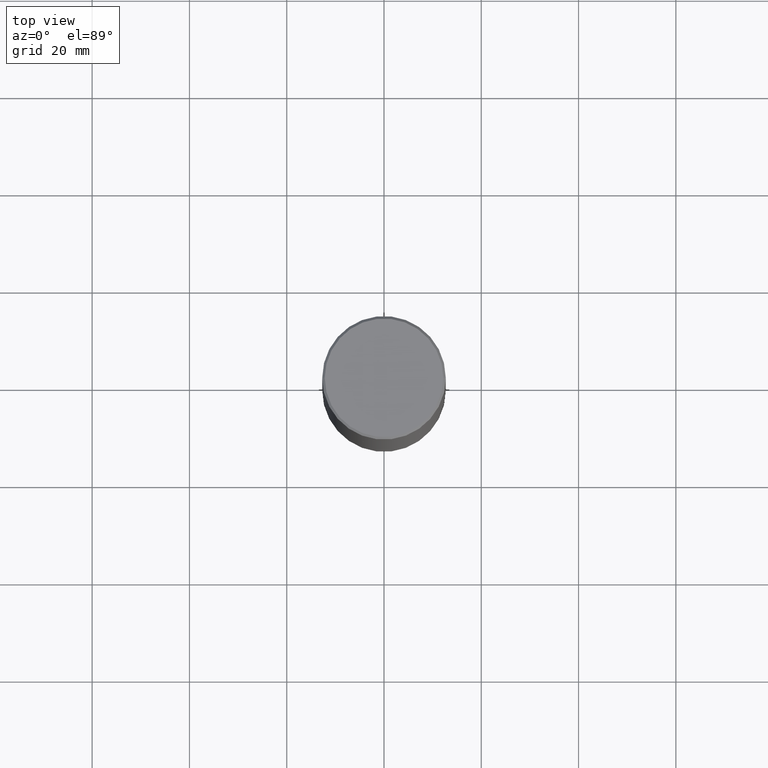
[diagram: clean part render]
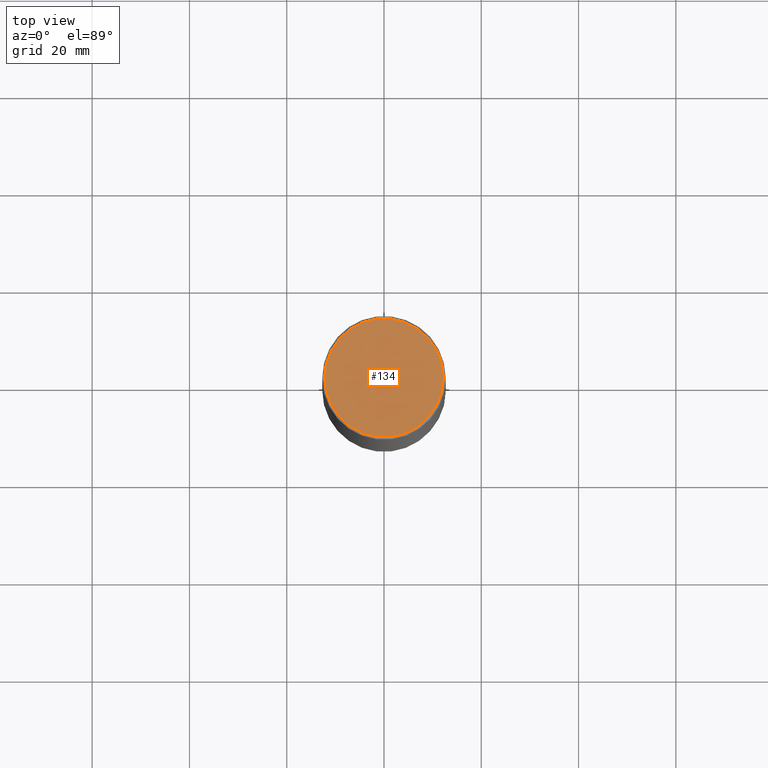
[diagram: same view with one face highlighted and labeled with its STEP entity id]
A machine part, top view. The second image highlights one B-rep face of the part: STEP entity #134.
In plain terms, the highlighted planar face has unit normal (0, -0, -1).
Its self-contained STEP definition (entity closure, byte-faithful):
#4 = CIRCLE ( 'NONE', #146, 0.4800000000000000933 ) ;
#20 = FACE_OUTER_BOUND ( 'NONE', #254, .T. ) ;
#27 = DIRECTION ( 'NONE',  ( 1.000000000000000000, -6.982962677686266711E-15, 4.874852205035275907E-29 ) ) ;
#34 = DIRECTION ( 'NONE',  ( -2.445468806185136597E-29, 3.491481338843145583E-15, 1.000000000000000000 ) ) ;
#93 = CARTESIAN_POINT ( 'NONE',  ( 2.609628535838049452E-45, -3.725857925951117973E-31, -1.067128122525102851E-16 ) ) ;
#102 = ORIENTED_EDGE ( 'NONE', *, *, #289, .T. ) ;
#133 = AXIS2_PLACEMENT_3D ( 'NONE', #93, #317, #27 ) ;
#134 = ADVANCED_FACE ( 'NONE', ( #20 ), #394, .F. ) ;
#138 = AXIS2_PLACEMENT_3D ( 'NONE', #301, #370, #318 ) ;
#146 = AXIS2_PLACEMENT_3D ( 'NONE', #357, #34, #265 ) ;
#156 = ORIENTED_EDGE ( 'NONE', *, *, #347, .T. ) ;
#160 = CARTESIAN_POINT ( 'NONE',  ( -0.4800000000000000933, 3.386736898677839197E-15, -1.067128122525338523E-16 ) ) ;
#188 = VERTEX_POINT ( 'NONE', #226 ) ;
#217 = VERTEX_POINT ( 'NONE', #160 ) ;
#226 = CARTESIAN_POINT ( 'NONE',  ( 0.4800000000000000933, -3.396558832296482493E-15, -1.067128122524866809E-16 ) ) ;
#254 = EDGE_LOOP ( 'NONE', ( #156, #102 ) ) ;
#265 = DIRECTION ( 'NONE',  ( 1.000000000000000000, -6.982962677686266711E-15, 4.874852205035275907E-29 ) ) ;
#289 = EDGE_CURVE ( 'NONE', #188, #217, #372, .T. ) ;
#301 = CARTESIAN_POINT ( 'NONE',  ( 3.351822085289408337E-15, 0.4800000000000000933, -1.729267448770965221E-15 ) ) ;
#317 = DIRECTION ( 'NONE',  ( -2.445468806185136597E-29, 3.491481338843145583E-15, 1.000000000000000000 ) ) ;
#318 = DIRECTION ( 'NONE',  ( -1.000000000000000000, 6.982962677686265922E-15, -4.876176775795935793E-29 ) ) ;
#347 = EDGE_CURVE ( 'NONE', #217, #188, #4, .T. ) ;
#357 = CARTESIAN_POINT ( 'NONE',  ( 2.609628535838049452E-45, -3.725857925951117973E-31, -1.067128122525102851E-16 ) ) ;
#370 = DIRECTION ( 'NONE',  ( 2.438088387897960049E-29, -3.491481338843145188E-15, -1.000000000000000000 ) ) ;
#372 = CIRCLE ( 'NONE', #133, 0.4800000000000000933 ) ;
#394 = PLANE ( 'NONE',  #138 ) ;